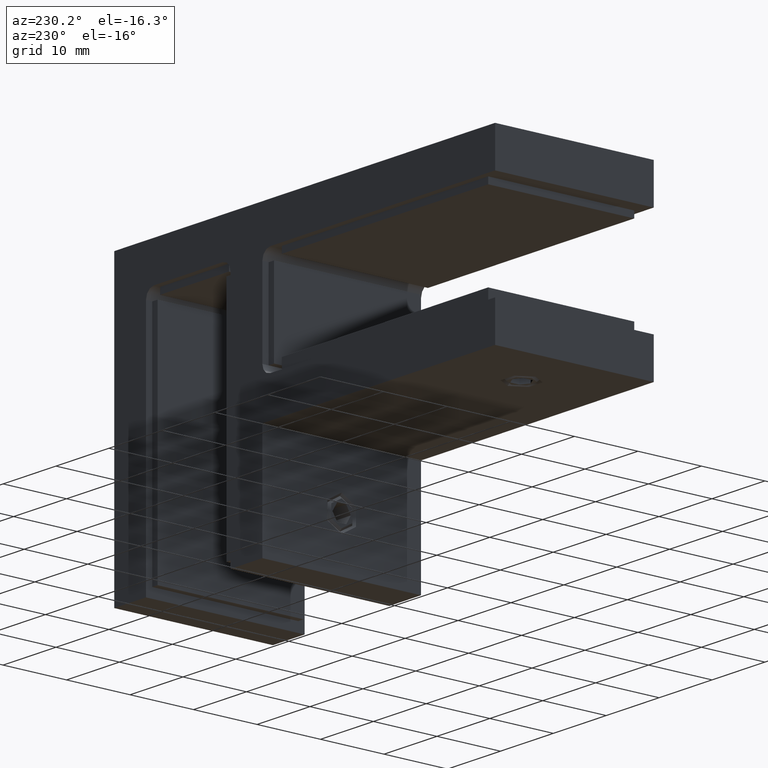
[diagram: clean part render]
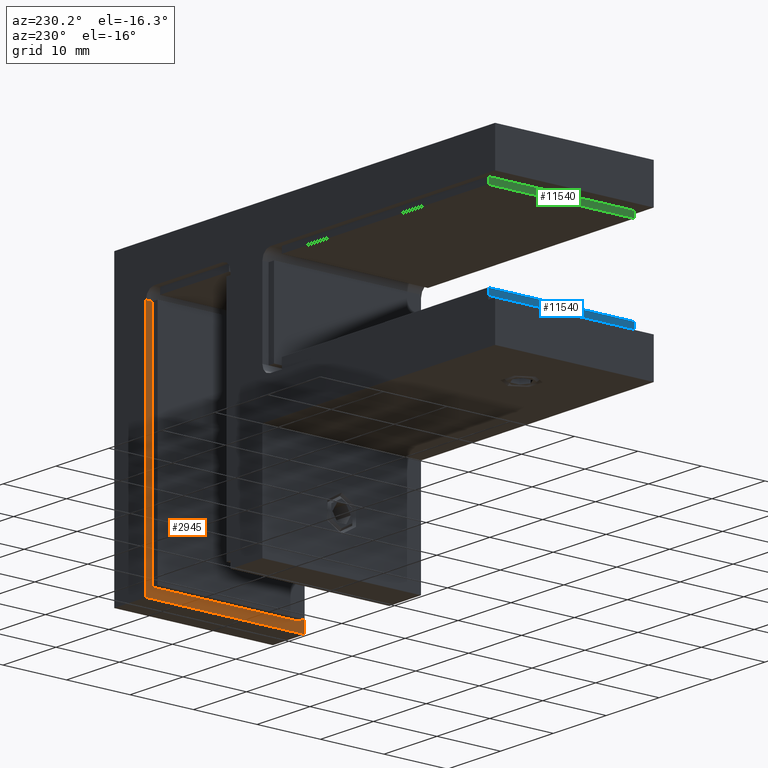
[diagram: same view with three faces highlighted in distinct colors, each labeled with its STEP entity id]
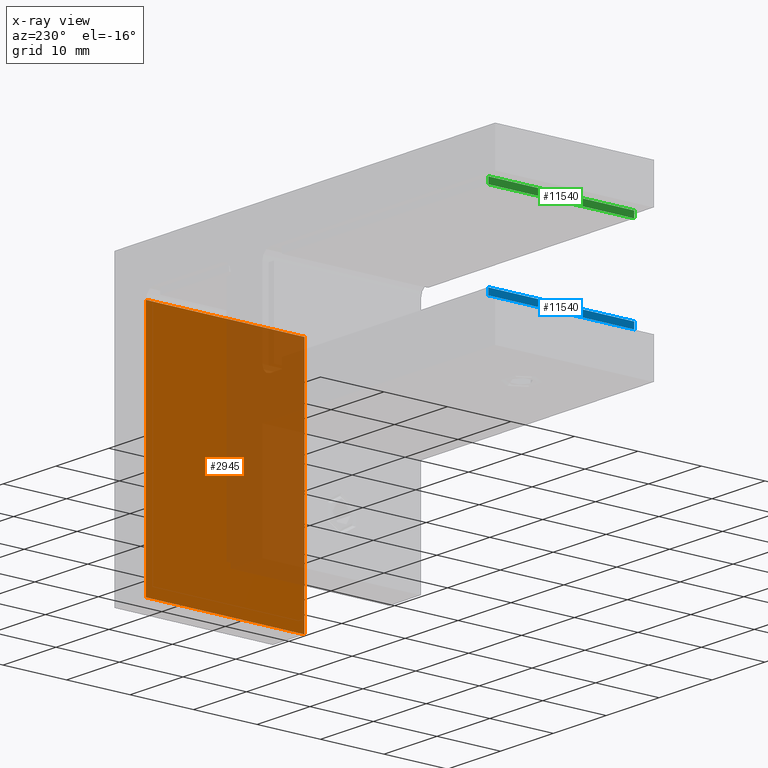
[diagram: x-ray of the same camera — body ghosted, the three highlighted faces saturated]
A machine part, auxiliary view with three faces highlighted in distinct colors.
The next image is the same camera in x-ray (body ghosted, the three faces saturated) — at least one of them is partly hidden behind the body in this view.
Their STEP definitions:

[orange] entity #2945 — the highlighted planar face has unit normal (1, 0, 0).
#712 = CARTESIAN_POINT ( 'NONE',  ( 30.00000000000000000, 12.50000000000000000, -22.50000000000000000 ) ) ;
#1899 = ORIENTED_EDGE ( 'NONE', *, *, #6946, .F. ) ;
#2126 = LINE ( 'NONE', #13022, #8137 ) ;
#2441 = ORIENTED_EDGE ( 'NONE', *, *, #5897, .T. ) ;
#2945 = ADVANCED_FACE ( 'NONE', ( #6549 ), #3880, .F. ) ;
#3194 = VECTOR ( 'NONE', #16549, 1000.000000000000000 ) ;
#3738 = DIRECTION ( 'NONE',  ( 1.000000000000000000, 0.000000000000000000, 0.000000000000000000 ) ) ;
#3880 = PLANE ( 'NONE',  #3906 ) ;
#3906 = AXIS2_PLACEMENT_3D ( 'NONE', #712, #3738, #15548 ) ;
#4047 = CARTESIAN_POINT ( 'NONE',  ( 30.00000000000000000, -12.50000000000000000, -22.50000000000000000 ) ) ;
#4716 = LINE ( 'NONE', #19835, #20861 ) ;
#4735 = CARTESIAN_POINT ( 'NONE',  ( 30.00000000000000000, 12.50000000000000000, 15.00000000000000178 ) ) ;
#4780 = VERTEX_POINT ( 'NONE', #4047 ) ;
#5897 = EDGE_CURVE ( 'NONE', #13594, #4780, #4716, .T. ) ;
#6549 = FACE_OUTER_BOUND ( 'NONE', #17612, .T. ) ;
#6946 = EDGE_CURVE ( 'NONE', #13594, #10325, #7002, .T. ) ;
#7002 = LINE ( 'NONE', #10797, #10396 ) ;
#8137 = VECTOR ( 'NONE', #17706, 1000.000000000000000 ) ;
#9246 = CARTESIAN_POINT ( 'NONE',  ( 30.00000000000000000, 12.50000000000000000, 15.00000000000000000 ) ) ;
#9420 = LINE ( 'NONE', #4735, #3194 ) ;
#10325 = VERTEX_POINT ( 'NONE', #9246 ) ;
#10396 = VECTOR ( 'NONE', #15986, 1000.000000000000000 ) ;
#10797 = CARTESIAN_POINT ( 'NONE',  ( 30.00000000000000000, 12.50000000000000000, -22.50000000000000000 ) ) ;
#13022 = CARTESIAN_POINT ( 'NONE',  ( 30.00000000000000000, -12.50000000000000000, -22.50000000000000000 ) ) ;
#13594 = VERTEX_POINT ( 'NONE', #20214 ) ;
#15548 = DIRECTION ( 'NONE',  ( 0.000000000000000000, 0.000000000000000000, -1.000000000000000000 ) ) ;
#15986 = DIRECTION ( 'NONE',  ( 0.000000000000000000, 0.000000000000000000, 1.000000000000000000 ) ) ;
#16549 = DIRECTION ( 'NONE',  ( -0.000000000000000000, 1.000000000000000000, -0.000000000000000000 ) ) ;
#17612 = EDGE_LOOP ( 'NONE', ( #17825, #17863, #1899, #2441 ) ) ;
#17706 = DIRECTION ( 'NONE',  ( 0.000000000000000000, 0.000000000000000000, 1.000000000000000000 ) ) ;
#17728 = CARTESIAN_POINT ( 'NONE',  ( 30.00000000000000000, -12.50000000000000000, 15.00000000000000000 ) ) ;
#17825 = ORIENTED_EDGE ( 'NONE', *, *, #21309, .T. ) ;
#17863 = ORIENTED_EDGE ( 'NONE', *, *, #19748, .T. ) ;
#18909 = VERTEX_POINT ( 'NONE', #17728 ) ;
#19748 = EDGE_CURVE ( 'NONE', #18909, #10325, #9420, .T. ) ;
#19835 = CARTESIAN_POINT ( 'NONE',  ( 30.00000000000000000, 12.50000000000000000, -22.50000000000000000 ) ) ;
#20214 = CARTESIAN_POINT ( 'NONE',  ( 30.00000000000000000, 12.50000000000000000, -22.50000000000000000 ) ) ;
#20861 = VECTOR ( 'NONE', #21498, 1000.000000000000000 ) ;
#21309 = EDGE_CURVE ( 'NONE', #4780, #18909, #2126, .T. ) ;
#21498 = DIRECTION ( 'NONE',  ( -0.000000000000000000, -1.000000000000000000, -0.000000000000000000 ) ) ;

[blue] entity #11540 — the highlighted planar face has unit normal (1, 0, 0).
#22 = VECTOR ( 'NONE', #18437, 1000.000000000000000 ) ;
#43 = LINE ( 'NONE', #16366, #20398 ) ;
#636 = ORIENTED_EDGE ( 'NONE', *, *, #21601, .T. ) ;
#1044 = EDGE_CURVE ( 'NONE', #15267, #15523, #21414, .T. ) ;
#1342 = FACE_OUTER_BOUND ( 'NONE', #10759, .T. ) ;
#1403 = DIRECTION ( 'NONE',  ( 0.000000000000000000, -1.000000000000000000, 0.000000000000000000 ) ) ;
#2095 = LINE ( 'NONE', #15158, #19311 ) ;
#2699 = DIRECTION ( 'NONE',  ( -0.000000000000000000, -0.000000000000000000, -1.000000000000000000 ) ) ;
#3079 = EDGE_CURVE ( 'NONE', #18223, #15267, #2095, .T. ) ;
#4336 = DIRECTION ( 'NONE',  ( -0.000000000000000000, 0.000000000000000000, -1.000000000000000000 ) ) ;
#5143 = ORIENTED_EDGE ( 'NONE', *, *, #1044, .F. ) ;
#5584 = CARTESIAN_POINT ( 'NONE',  ( -19.50000000000000355, 11.49999999999999645, -0.5000000000000004441 ) ) ;
#5912 = DIRECTION ( 'NONE',  ( 1.000000000000000000, 0.000000000000000000, -0.000000000000000000 ) ) ;
#6697 = CARTESIAN_POINT ( 'NONE',  ( -19.50000000000000355, -11.50000000000000355, 0.5000000000000004441 ) ) ;
#7613 = LINE ( 'NONE', #14534, #20178 ) ;
#7733 = PLANE ( 'NONE',  #14016 ) ;
#7804 = CARTESIAN_POINT ( 'NONE',  ( -19.50000000000000355, 11.49999999999999645, 0.5000000000000004441 ) ) ;
#10759 = EDGE_LOOP ( 'NONE', ( #636, #5143, #15230, #17714 ) ) ;
#11540 = ADVANCED_FACE ( 'NONE', ( #1342 ), #7733, .F. ) ;
#13748 = DIRECTION ( 'NONE',  ( 0.000000000000000000, -1.000000000000000000, 0.000000000000000000 ) ) ;
#14016 = AXIS2_PLACEMENT_3D ( 'NONE', #7804, #5912, #4336 ) ;
#14534 = CARTESIAN_POINT ( 'NONE',  ( -19.50000000000000355, 11.49999999999999645, 0.5000000000000004441 ) ) ;
#14784 = CARTESIAN_POINT ( 'NONE',  ( -19.50000000000000355, -11.50000000000000355, -0.5000000000000004441 ) ) ;
#15158 = CARTESIAN_POINT ( 'NONE',  ( -19.50000000000000355, 11.49999999999999645, 0.5000000000000004441 ) ) ;
#15230 = ORIENTED_EDGE ( 'NONE', *, *, #3079, .F. ) ;
#15267 = VERTEX_POINT ( 'NONE', #19175 ) ;
#15317 = CARTESIAN_POINT ( 'NONE',  ( -19.50000000000000355, 11.49999999999999645, 0.5000000000000004441 ) ) ;
#15523 = VERTEX_POINT ( 'NONE', #14784 ) ;
#16366 = CARTESIAN_POINT ( 'NONE',  ( -19.50000000000000355, 11.49999999999999645, -0.5000000000000004441 ) ) ;
#17714 = ORIENTED_EDGE ( 'NONE', *, *, #18627, .T. ) ;
#18223 = VERTEX_POINT ( 'NONE', #15317 ) ;
#18437 = DIRECTION ( 'NONE',  ( -0.000000000000000000, -0.000000000000000000, -1.000000000000000000 ) ) ;
#18627 = EDGE_CURVE ( 'NONE', #18223, #19431, #7613, .T. ) ;
#19175 = CARTESIAN_POINT ( 'NONE',  ( -19.50000000000000355, -11.50000000000000355, 0.5000000000000004441 ) ) ;
#19311 = VECTOR ( 'NONE', #13748, 1000.000000000000000 ) ;
#19431 = VERTEX_POINT ( 'NONE', #5584 ) ;
#20178 = VECTOR ( 'NONE', #2699, 1000.000000000000000 ) ;
#20398 = VECTOR ( 'NONE', #1403, 1000.000000000000000 ) ;
#21414 = LINE ( 'NONE', #6697, #22 ) ;
#21601 = EDGE_CURVE ( 'NONE', #19431, #15523, #43, .T. ) ;

[green] entity #11540 — the highlighted planar face has unit normal (1, 0, 0).
#22 = VECTOR ( 'NONE', #18437, 1000.000000000000000 ) ;
#43 = LINE ( 'NONE', #16366, #20398 ) ;
#636 = ORIENTED_EDGE ( 'NONE', *, *, #21601, .T. ) ;
#1044 = EDGE_CURVE ( 'NONE', #15267, #15523, #21414, .T. ) ;
#1342 = FACE_OUTER_BOUND ( 'NONE', #10759, .T. ) ;
#1403 = DIRECTION ( 'NONE',  ( 0.000000000000000000, -1.000000000000000000, 0.000000000000000000 ) ) ;
#2095 = LINE ( 'NONE', #15158, #19311 ) ;
#2699 = DIRECTION ( 'NONE',  ( -0.000000000000000000, -0.000000000000000000, -1.000000000000000000 ) ) ;
#3079 = EDGE_CURVE ( 'NONE', #18223, #15267, #2095, .T. ) ;
#4336 = DIRECTION ( 'NONE',  ( -0.000000000000000000, 0.000000000000000000, -1.000000000000000000 ) ) ;
#5143 = ORIENTED_EDGE ( 'NONE', *, *, #1044, .F. ) ;
#5584 = CARTESIAN_POINT ( 'NONE',  ( -19.50000000000000355, 11.49999999999999645, -0.5000000000000004441 ) ) ;
#5912 = DIRECTION ( 'NONE',  ( 1.000000000000000000, 0.000000000000000000, -0.000000000000000000 ) ) ;
#6697 = CARTESIAN_POINT ( 'NONE',  ( -19.50000000000000355, -11.50000000000000355, 0.5000000000000004441 ) ) ;
#7613 = LINE ( 'NONE', #14534, #20178 ) ;
#7733 = PLANE ( 'NONE',  #14016 ) ;
#7804 = CARTESIAN_POINT ( 'NONE',  ( -19.50000000000000355, 11.49999999999999645, 0.5000000000000004441 ) ) ;
#10759 = EDGE_LOOP ( 'NONE', ( #636, #5143, #15230, #17714 ) ) ;
#11540 = ADVANCED_FACE ( 'NONE', ( #1342 ), #7733, .F. ) ;
#13748 = DIRECTION ( 'NONE',  ( 0.000000000000000000, -1.000000000000000000, 0.000000000000000000 ) ) ;
#14016 = AXIS2_PLACEMENT_3D ( 'NONE', #7804, #5912, #4336 ) ;
#14534 = CARTESIAN_POINT ( 'NONE',  ( -19.50000000000000355, 11.49999999999999645, 0.5000000000000004441 ) ) ;
#14784 = CARTESIAN_POINT ( 'NONE',  ( -19.50000000000000355, -11.50000000000000355, -0.5000000000000004441 ) ) ;
#15158 = CARTESIAN_POINT ( 'NONE',  ( -19.50000000000000355, 11.49999999999999645, 0.5000000000000004441 ) ) ;
#15230 = ORIENTED_EDGE ( 'NONE', *, *, #3079, .F. ) ;
#15267 = VERTEX_POINT ( 'NONE', #19175 ) ;
#15317 = CARTESIAN_POINT ( 'NONE',  ( -19.50000000000000355, 11.49999999999999645, 0.5000000000000004441 ) ) ;
#15523 = VERTEX_POINT ( 'NONE', #14784 ) ;
#16366 = CARTESIAN_POINT ( 'NONE',  ( -19.50000000000000355, 11.49999999999999645, -0.5000000000000004441 ) ) ;
#17714 = ORIENTED_EDGE ( 'NONE', *, *, #18627, .T. ) ;
#18223 = VERTEX_POINT ( 'NONE', #15317 ) ;
#18437 = DIRECTION ( 'NONE',  ( -0.000000000000000000, -0.000000000000000000, -1.000000000000000000 ) ) ;
#18627 = EDGE_CURVE ( 'NONE', #18223, #19431, #7613, .T. ) ;
#19175 = CARTESIAN_POINT ( 'NONE',  ( -19.50000000000000355, -11.50000000000000355, 0.5000000000000004441 ) ) ;
#19311 = VECTOR ( 'NONE', #13748, 1000.000000000000000 ) ;
#19431 = VERTEX_POINT ( 'NONE', #5584 ) ;
#20178 = VECTOR ( 'NONE', #2699, 1000.000000000000000 ) ;
#20398 = VECTOR ( 'NONE', #1403, 1000.000000000000000 ) ;
#21414 = LINE ( 'NONE', #6697, #22 ) ;
#21601 = EDGE_CURVE ( 'NONE', #19431, #15523, #43, .T. ) ;